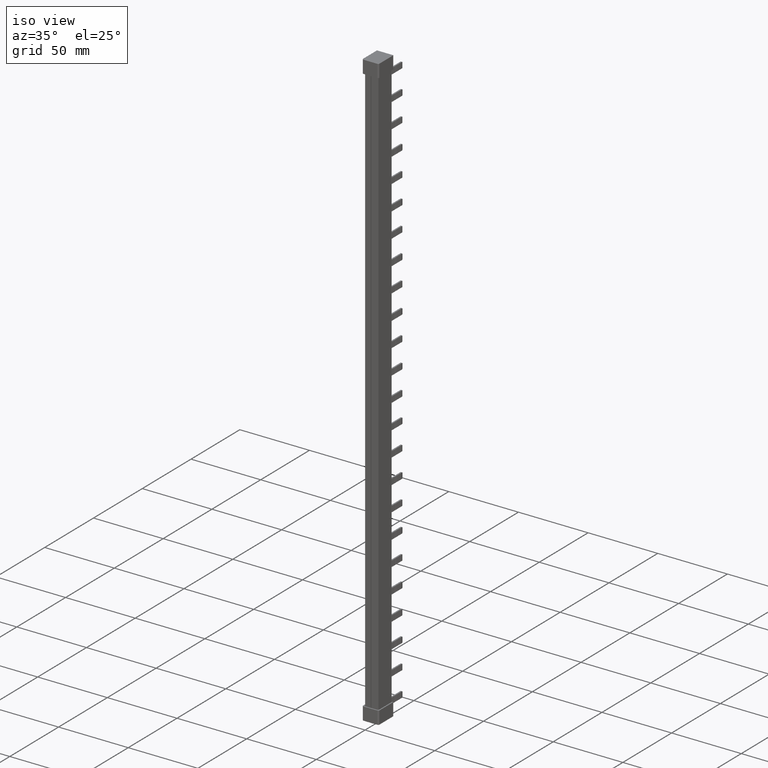
[diagram: clean part render]
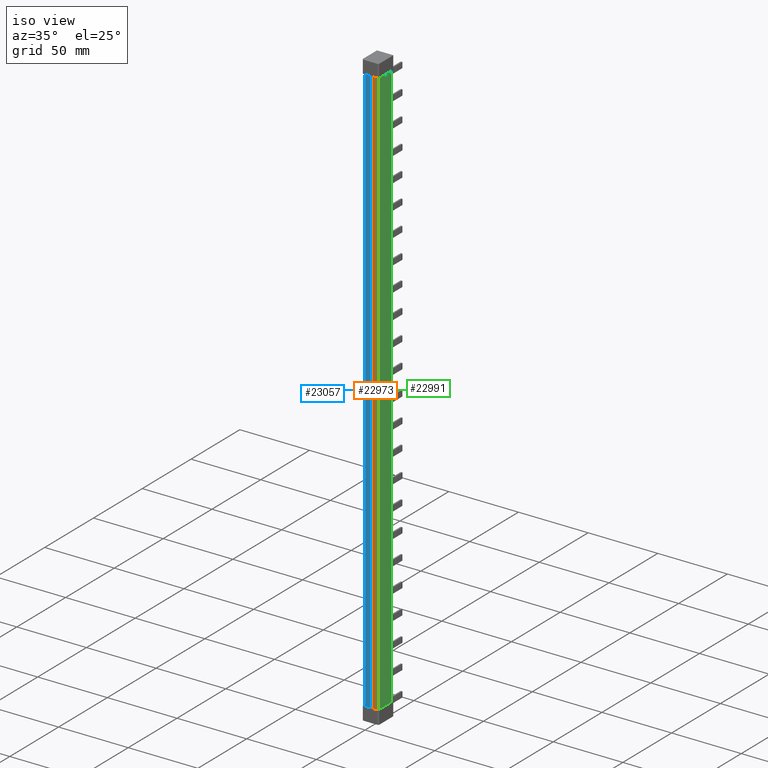
[diagram: same view with three faces highlighted in distinct colors, each labeled with its STEP entity id]
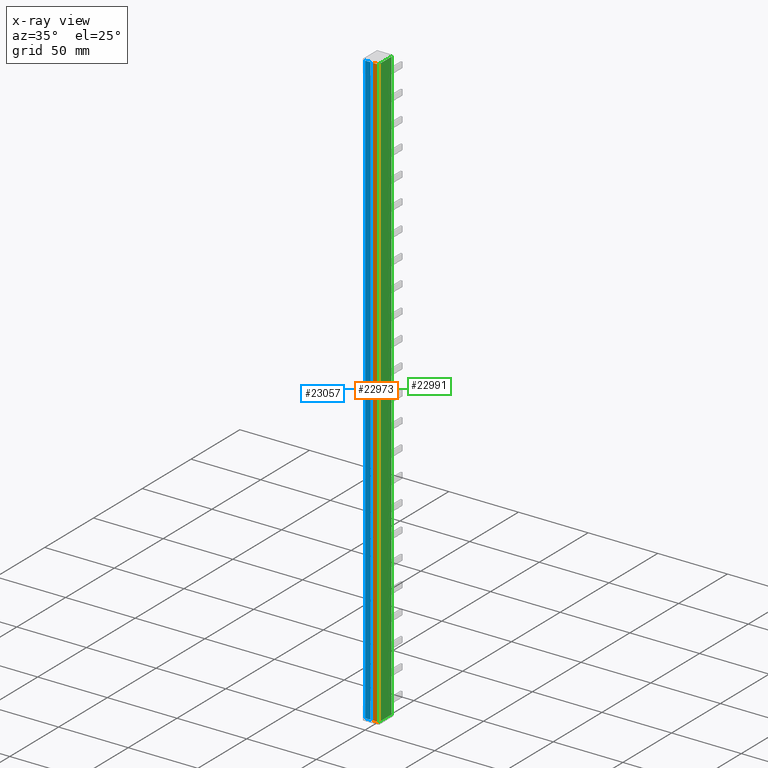
[diagram: x-ray of the same camera — body ghosted, the three highlighted faces saturated]
A machine part, iso view with three faces highlighted in distinct colors.
The next image is the same camera in x-ray (body ghosted, the three faces saturated) — at least one of them is partly hidden behind the body in this view.
Their STEP definitions:

[orange] entity #22973 — the highlighted planar face has unit normal (0, -1, 0).
#438 = AXIS2_PLACEMENT_3D ( 'NONE', #21634, #21608, #21605 ) ;
#9312 = B_SPLINE_CURVE_WITH_KNOTS ( 'NONE', 3,
 ( #30839, #30823, #30815, #30836 ),
 .UNSPECIFIED., .F., .F.,
 ( 4, 4 ),
 ( 0.0000000000000000000, 7.086635673192470600E-006 ),
 .UNSPECIFIED. ) ;
#9333 = B_SPLINE_CURVE_WITH_KNOTS ( 'NONE', 3,
 ( #30758, #30759, #30764, #30765 ),
 .UNSPECIFIED., .F., .F.,
 ( 4, 4 ),
 ( 3.469446951953613800E-018, 7.180330899525491700E-006 ),
 .UNSPECIFIED. ) ;
#9967 = VERTEX_POINT ( 'NONE', #18266 ) ;
#9986 = VERTEX_POINT ( 'NONE', #18237 ) ;
#9999 = VERTEX_POINT ( 'NONE', #18290 ) ;
#13827 = ORIENTED_EDGE ( 'NONE', *, *, #37877, .T. ) ;
#13831 = ORIENTED_EDGE ( 'NONE', *, *, #37899, .T. ) ;
#13855 = ORIENTED_EDGE ( 'NONE', *, *, #37754, .T. ) ;
#13913 = ORIENTED_EDGE ( 'NONE', *, *, #37886, .T. ) ;
#13927 = ORIENTED_EDGE ( 'NONE', *, *, #37911, .T. ) ;
#13955 = ORIENTED_EDGE ( 'NONE', *, *, #37828, .T. ) ;
#14345 = VECTOR ( 'NONE', #30755, 1000.000000000000000 ) ;
#14377 = VECTOR ( 'NONE', #30789, 1000.000000000000000 ) ;
#14390 = VECTOR ( 'NONE', #30668, 1000.000000000000000 ) ;
#14914 = VECTOR ( 'NONE', #30584, 1000.000000000000000 ) ;
#18237 = CARTESIAN_POINT ( 'NONE',  ( 9.592820323298621300, 8.673617379884035500E-017, 217.7999999999934200 ) ) ;
#18266 = CARTESIAN_POINT ( 'NONE',  ( 5.599999999999383200, -2.409338161078898500E-017, 217.7999999999956300 ) ) ;
#18290 = CARTESIAN_POINT ( 'NONE',  ( 5.599999999999383200, -6.023345402697246300E-018, -208.8000000000034800 ) ) ;
#21596 = PLANE ( 'NONE',  #438 ) ;
#21605 = DIRECTION ( 'NONE',  ( 0.0000000000000000000, -0.0000000000000000000, -1.000000000000000000 ) ) ;
#21608 = DIRECTION ( 'NONE',  ( 0.0000000000000000000, -1.000000000000000000, 0.0000000000000000000 ) ) ;
#21614 = FACE_OUTER_BOUND ( 'NONE', #33813, .T. ) ;
#21634 = CARTESIAN_POINT ( 'NONE',  ( 6.099999999999830900, 0.0000000000000000000, 219.0000000000000000 ) ) ;
#22973 = ADVANCED_FACE ( 'NONE', ( #21614 ), #21596, .T. ) ;
#23538 = VERTEX_POINT ( 'NONE', #23631 ) ;
#23580 = VERTEX_POINT ( 'NONE', #23814 ) ;
#23604 = VERTEX_POINT ( 'NONE', #23855 ) ;
#23631 = CARTESIAN_POINT ( 'NONE',  ( 9.592914026952424700, -6.865997570840165500E-011, -208.7999999901283000 ) ) ;
#23814 = CARTESIAN_POINT ( 'NONE',  ( 9.599999999999852200, -1.086912677916718200E-014, 217.7999030758346600 ) ) ;
#23855 = CARTESIAN_POINT ( 'NONE',  ( 9.599999999999852200, -1.029992063861229200E-014, -208.7999030758397500 ) ) ;
#30561 = CARTESIAN_POINT ( 'NONE',  ( 9.599999999999871700, 0.0000000000000000000, 219.0000000000000000 ) ) ;
#30583 = LINE ( 'NONE', #30561, #14914 ) ;
#30584 = DIRECTION ( 'NONE',  ( -0.0000000000000000000, 0.0000000000000000000, 1.000000000000000000 ) ) ;
#30664 = LINE ( 'NONE', #30686, #14390 ) ;
#30668 = DIRECTION ( 'NONE',  ( -1.000000000000000000, -0.0000000000000000000, 6.924738560343257600E-013 ) ) ;
#30686 = CARTESIAN_POINT ( 'NONE',  ( 8.900000000277932700, -5.421010862427522200E-017, 217.7999999999938400 ) ) ;
#30754 = CARTESIAN_POINT ( 'NONE',  ( 5.599999999999383200, 0.0000000000000000000, 219.0000000000000000 ) ) ;
#30755 = DIRECTION ( 'NONE',  ( 0.0000000000000000000, -0.0000000000000000000, -1.000000000000000000 ) ) ;
#30758 = CARTESIAN_POINT ( 'NONE',  ( 9.599999999999852200, -1.086912677916718200E-014, 217.7999030758346600 ) ) ;
#30759 = CARTESIAN_POINT ( 'NONE',  ( 9.597607430918758500, -1.626303258728256700E-016, 217.7999677721823000 ) ) ;
#30764 = CARTESIAN_POINT ( 'NONE',  ( 9.595213766931797400, 3.252606517456513300E-016, 217.7999999999935000 ) ) ;
#30765 = CARTESIAN_POINT ( 'NONE',  ( 9.592820323298621300, 8.673617379884035500E-017, 217.7999999999934200 ) ) ;
#30784 = LINE ( 'NONE', #30754, #14345 ) ;
#30786 = CARTESIAN_POINT ( 'NONE',  ( 8.899999999980860100, 0.0000000000000000000, -208.8000000000062100 ) ) ;
#30789 = DIRECTION ( 'NONE',  ( 1.000000000000000000, -0.0000000000000000000, -6.924738560343257600E-013 ) ) ;
#30796 = LINE ( 'NONE', #30786, #14377 ) ;
#30815 = CARTESIAN_POINT ( 'NONE',  ( 9.597638651249033300, 6.505213034913026600E-016, -208.7999669279756200 ) ) ;
#30823 = CARTESIAN_POINT ( 'NONE',  ( 9.595276238695325000, 3.252606517456513300E-016, -208.7999991534434800 ) ) ;
#30836 = CARTESIAN_POINT ( 'NONE',  ( 9.599999999999852200, -1.029992063861229200E-014, -208.7999030758397500 ) ) ;
#30839 = CARTESIAN_POINT ( 'NONE',  ( 9.592914026952424700, -6.865997570840165500E-011, -208.7999999901283000 ) ) ;
#33813 = EDGE_LOOP ( 'NONE', ( #13827, #13913, #13927, #13855, #13831, #13955 ) ) ;
#37754 = EDGE_CURVE ( 'NONE', #23604, #23580, #30583, .T. ) ;
#37828 = EDGE_CURVE ( 'NONE', #9986, #9967, #30664, .T. ) ;
#37877 = EDGE_CURVE ( 'NONE', #9967, #9999, #30784, .T. ) ;
#37886 = EDGE_CURVE ( 'NONE', #9999, #23538, #30796, .T. ) ;
#37899 = EDGE_CURVE ( 'NONE', #23580, #9986, #9333, .T. ) ;
#37911 = EDGE_CURVE ( 'NONE', #23538, #23604, #9312, .T. ) ;

[blue] entity #23057 — the highlighted planar face has unit normal (0, 1, 0).
#487 = AXIS2_PLACEMENT_3D ( 'NONE', #21872, #21841, #21833 ) ;
#9315 = B_SPLINE_CURVE_WITH_KNOTS ( 'NONE', 3,
 ( #30627, #30608, #30644, #30635 ),
 .UNSPECIFIED., .F., .F.,
 ( 4, 4 ),
 ( 1.807499908074109600E-017, 7.102352495239266600E-006 ),
 .UNSPECIFIED. ) ;
#9329 = B_SPLINE_CURVE_WITH_KNOTS ( 'NONE', 3,
 ( #30861, #30880, #30924, #30923 ),
 .UNSPECIFIED., .F., .F.,
 ( 4, 4 ),
 ( 2.168404344971008900E-019, 7.180331449033063700E-006 ),
 .UNSPECIFIED. ) ;
#9966 = VERTEX_POINT ( 'NONE', #18261 ) ;
#9972 = VERTEX_POINT ( 'NONE', #18219 ) ;
#9979 = VERTEX_POINT ( 'NONE', #18269 ) ;
#13892 = ORIENTED_EDGE ( 'NONE', *, *, #37917, .T. ) ;
#13900 = ORIENTED_EDGE ( 'NONE', *, *, #37864, .F. ) ;
#13933 = ORIENTED_EDGE ( 'NONE', *, *, #37903, .F. ) ;
#13941 = ORIENTED_EDGE ( 'NONE', *, *, #37794, .T. ) ;
#13945 = ORIENTED_EDGE ( 'NONE', *, *, #37970, .T. ) ;
#13957 = ORIENTED_EDGE ( 'NONE', *, *, #37872, .F. ) ;
#14347 = VECTOR ( 'NONE', #30837, 1000.000000000000000 ) ;
#14348 = VECTOR ( 'NONE', #30830, 1000.000000000000000 ) ;
#14372 = VECTOR ( 'NONE', #30790, 1000.000000000000000 ) ;
#14384 = VECTOR ( 'NONE', #30720, 1000.000000000000000 ) ;
#18219 = CARTESIAN_POINT ( 'NONE',  ( -1.755052266709506800E-014, -1.829591166069288700E-014, -208.7999030758342100 ) ) ;
#18261 = CARTESIAN_POINT ( 'NONE',  ( 3.021603118951639100E-027, -3.241764495731658300E-014, 217.7999030758261700 ) ) ;
#18269 = CARTESIAN_POINT ( 'NONE',  ( 4.000000000000447600, 0.0000000000000000000, -208.8000000000015500 ) ) ;
#21833 = DIRECTION ( 'NONE',  ( 0.0000000000000000000, -0.0000000000000000000, 1.000000000000000000 ) ) ;
#21841 = DIRECTION ( 'NONE',  ( 0.0000000000000000000, 1.000000000000000000, 0.0000000000000000000 ) ) ;
#21847 = PLANE ( 'NONE',  #487 ) ;
#21865 = FACE_OUTER_BOUND ( 'NONE', #33794, .T. ) ;
#21872 = CARTESIAN_POINT ( 'NONE',  ( 0.0000000000000000000, 0.0000000000000000000, 219.0000000000000000 ) ) ;
#23057 = ADVANCED_FACE ( 'NONE', ( #21865 ), #21847, .F. ) ;
#23490 = VERTEX_POINT ( 'NONE', #23547 ) ;
#23547 = CARTESIAN_POINT ( 'NONE',  ( 0.007101691267848297600, -6.941352874434425500E-011, -208.7999999931285200 ) ) ;
#23564 = VERTEX_POINT ( 'NONE', #23722 ) ;
#23612 = VERTEX_POINT ( 'NONE', #23864 ) ;
#23722 = CARTESIAN_POINT ( 'NONE',  ( 0.007179677250580122400, 7.752045533271356700E-015, 217.8000000000000100 ) ) ;
#23864 = CARTESIAN_POINT ( 'NONE',  ( 4.000000000000447600, 0.0000000000000000000, 217.7999999999999300 ) ) ;
#30608 = CARTESIAN_POINT ( 'NONE',  ( 0.002366585777200488500, -3.252606517456513300E-016, -208.7999670695817000 ) ) ;
#30627 = CARTESIAN_POINT ( 'NONE',  ( -1.755052266709506800E-014, -1.829591166069288700E-014, -208.7999030758342100 ) ) ;
#30635 = CARTESIAN_POINT ( 'NONE',  ( 0.007101691267848297600, -6.941352874434425500E-011, -208.7999999931285200 ) ) ;
#30644 = CARTESIAN_POINT ( 'NONE',  ( 0.004734240538673776400, 3.252606517456513300E-016, -208.7999992962148500 ) ) ;
#30717 = LINE ( 'NONE', #30718, #14384 ) ;
#30718 = CARTESIAN_POINT ( 'NONE',  ( 0.0000000000000000000, 0.0000000000000000000, 217.8000000000000100 ) ) ;
#30720 = DIRECTION ( 'NONE',  ( 1.000000000000000000, 0.0000000000000000000, -0.0000000000000000000 ) ) ;
#30766 = LINE ( 'NONE', #30788, #14372 ) ;
#30788 = CARTESIAN_POINT ( 'NONE',  ( 0.0000000000000000000, 0.0000000000000000000, -208.8000000000009200 ) ) ;
#30790 = DIRECTION ( 'NONE',  ( -1.000000000000000000, -0.0000000000000000000, 0.0000000000000000000 ) ) ;
#30800 = LINE ( 'NONE', #30825, #14348 ) ;
#30813 = LINE ( 'NONE', #30814, #14347 ) ;
#30814 = CARTESIAN_POINT ( 'NONE',  ( 4.000000000000447600, 0.0000000000000000000, 219.0000000000000000 ) ) ;
#30825 = CARTESIAN_POINT ( 'NONE',  ( 0.0000000000000000000, -3.642919299551294900E-014, 219.0000000000000000 ) ) ;
#30830 = DIRECTION ( 'NONE',  ( 0.0000000000000000000, 0.0000000000000000000, -1.000000000000000000 ) ) ;
#30837 = DIRECTION ( 'NONE',  ( -0.0000000000000000000, 0.0000000000000000000, -1.000000000000000000 ) ) ;
#30861 = CARTESIAN_POINT ( 'NONE',  ( 0.007179677250580122400, 7.752045533271356700E-015, 217.8000000000000100 ) ) ;
#30880 = CARTESIAN_POINT ( 'NONE',  ( 0.004786233434235866900, -8.131516293641283300E-017, 217.8000000000000100 ) ) ;
#30923 = CARTESIAN_POINT ( 'NONE',  ( 3.021603118951639100E-027, -3.241764495731658300E-014, 217.7999030758261700 ) ) ;
#30924 = CARTESIAN_POINT ( 'NONE',  ( 0.002392569264056993100, 0.0000000000000000000, 217.7999677721837800 ) ) ;
#33794 = EDGE_LOOP ( 'NONE', ( #13892, #13941, #13957, #13933, #13900, #13945 ) ) ;
#37794 = EDGE_CURVE ( 'NONE', #9972, #23490, #9315, .T. ) ;
#37864 = EDGE_CURVE ( 'NONE', #23564, #23612, #30717, .T. ) ;
#37872 = EDGE_CURVE ( 'NONE', #9979, #23490, #30766, .T. ) ;
#37903 = EDGE_CURVE ( 'NONE', #23612, #9979, #30813, .T. ) ;
#37917 = EDGE_CURVE ( 'NONE', #9966, #9972, #30800, .T. ) ;
#37970 = EDGE_CURVE ( 'NONE', #23564, #9966, #9329, .T. ) ;

[green] entity #22991 — the highlighted planar face has unit normal (1, -0, 0).
#436 = AXIS2_PLACEMENT_3D ( 'NONE', #21683, #21690, #21672 ) ;
#9327 = B_SPLINE_CURVE_WITH_KNOTS ( 'NONE', 3,
 ( #30957, #30940, #30941, #30956 ),
 .UNSPECIFIED., .F., .F.,
 ( 4, 4 ),
 ( 1.029930643167077400E-017, 1.254962193624357700E-005 ),
 .UNSPECIFIED. ) ;
#9332 = B_SPLINE_CURVE_WITH_KNOTS ( 'NONE', 3,
 ( #30908, #30950, #30966, #30942 ),
 .UNSPECIFIED., .F., .F.,
 ( 4, 4 ),
 ( 0.0000000000000000000, 1.270203513945254400E-005 ),
 .UNSPECIFIED. ) ;
#9969 = VERTEX_POINT ( 'NONE', #18244 ) ;
#9997 = VERTEX_POINT ( 'NONE', #18326 ) ;
#13653 = ORIENTED_EDGE ( 'NONE', *, *, #38003, .T. ) ;
#13770 = ORIENTED_EDGE ( 'NONE', *, *, #38005, .T. ) ;
#13794 = ORIENTED_EDGE ( 'NONE', *, *, #37769, .T. ) ;
#13797 = ORIENTED_EDGE ( 'NONE', *, *, #37884, .T. ) ;
#13801 = ORIENTED_EDGE ( 'NONE', *, *, #37812, .T. ) ;
#13887 = ORIENTED_EDGE ( 'NONE', *, *, #37754, .F. ) ;
#14356 = VECTOR ( 'NONE', #30776, 1000.000000000000000 ) ;
#14914 = VECTOR ( 'NONE', #30584, 1000.000000000000000 ) ;
#14931 = VECTOR ( 'NONE', #30694, 1000.000000000000000 ) ;
#14946 = VECTOR ( 'NONE', #30578, 1000.000000000000000 ) ;
#18244 = CARTESIAN_POINT ( 'NONE',  ( 9.599999999997635300, 0.01254924774888371500, -208.7999999918356500 ) ) ;
#18326 = CARTESIAN_POINT ( 'NONE',  ( 9.600000000031695200, 0.01270166533927966100, 217.7999999999939900 ) ) ;
#21652 = FACE_OUTER_BOUND ( 'NONE', #33774, .T. ) ;
#21672 = DIRECTION ( 'NONE',  ( 0.0000000000000000000, 0.0000000000000000000, -1.000000000000000000 ) ) ;
#21683 = CARTESIAN_POINT ( 'NONE',  ( 9.599999999999830900, 0.0000000000000000000, -105.0000000000000100 ) ) ;
#21690 = DIRECTION ( 'NONE',  ( 1.000000000000000000, -0.0000000000000000000, 0.0000000000000000000 ) ) ;
#21692 = PLANE ( 'NONE',  #436 ) ;
#22991 = ADVANCED_FACE ( 'NONE', ( #21652 ), #21692, .T. ) ;
#23552 = VERTEX_POINT ( 'NONE', #23775 ) ;
#23577 = VERTEX_POINT ( 'NONE', #23769 ) ;
#23580 = VERTEX_POINT ( 'NONE', #23814 ) ;
#23604 = VERTEX_POINT ( 'NONE', #23855 ) ;
#23769 = CARTESIAN_POINT ( 'NONE',  ( 9.599999999999830900, 13.49999999999998400, 217.7999999999962900 ) ) ;
#23775 = CARTESIAN_POINT ( 'NONE',  ( 9.599999999999830900, 13.49999999999998400, -208.7999999954641600 ) ) ;
#23814 = CARTESIAN_POINT ( 'NONE',  ( 9.599999999999852200, -1.086912677916718200E-014, 217.7999030758346600 ) ) ;
#23855 = CARTESIAN_POINT ( 'NONE',  ( 9.599999999999852200, -1.029992063861229200E-014, -208.7999030758397500 ) ) ;
#30561 = CARTESIAN_POINT ( 'NONE',  ( 9.599999999999871700, 0.0000000000000000000, 219.0000000000000000 ) ) ;
#30574 = LINE ( 'NONE', #30577, #14946 ) ;
#30577 = CARTESIAN_POINT ( 'NONE',  ( 9.599999999999830900, 0.0000000000000000000, 217.7999999999962900 ) ) ;
#30578 = DIRECTION ( 'NONE',  ( -0.0000000000000000000, -1.000000000000000000, -0.0000000000000000000 ) ) ;
#30583 = LINE ( 'NONE', #30561, #14914 ) ;
#30584 = DIRECTION ( 'NONE',  ( -0.0000000000000000000, 0.0000000000000000000, 1.000000000000000000 ) ) ;
#30654 = LINE ( 'NONE', #30660, #14931 ) ;
#30660 = CARTESIAN_POINT ( 'NONE',  ( 9.599999999999830900, 13.49999999999998400, -105.0000000000000100 ) ) ;
#30694 = DIRECTION ( 'NONE',  ( -0.0000000000000000000, -0.0000000000000000000, 1.000000000000000000 ) ) ;
#30763 = CARTESIAN_POINT ( 'NONE',  ( 9.599999999999830900, 0.0000000000000000000, -208.7999999931952600 ) ) ;
#30769 = LINE ( 'NONE', #30763, #14356 ) ;
#30776 = DIRECTION ( 'NONE',  ( 0.0000000000000000000, 1.000000000000000000, 0.0000000000000000000 ) ) ;
#30908 = CARTESIAN_POINT ( 'NONE',  ( 9.600000000031695200, 0.01270166533927966100, 217.7999999999939900 ) ) ;
#30940 = CARTESIAN_POINT ( 'NONE',  ( 9.599999999999830900, 0.004182708018314006000, -208.7999677059350200 ) ) ;
#30941 = CARTESIAN_POINT ( 'NONE',  ( 9.599999999999827300, 0.008366040504565052900, -208.7999992388714900 ) ) ;
#30942 = CARTESIAN_POINT ( 'NONE',  ( 9.599999999999852200, -1.086912677916718200E-014, 217.7999030758346600 ) ) ;
#30950 = CARTESIAN_POINT ( 'NONE',  ( 9.599999999999830900, 0.008467653626125075700, 217.7999999999957500 ) ) ;
#30956 = CARTESIAN_POINT ( 'NONE',  ( 9.599999999997635300, 0.01254924774888371500, -208.7999999918356500 ) ) ;
#30957 = CARTESIAN_POINT ( 'NONE',  ( 9.599999999999852200, -1.029992063861229200E-014, -208.7999030758397500 ) ) ;
#30966 = CARTESIAN_POINT ( 'NONE',  ( 9.599999999999830900, 0.004233506355582776500, 217.7999684908496400 ) ) ;
#33774 = EDGE_LOOP ( 'NONE', ( #13770, #13887, #13653, #13797, #13801, #13794 ) ) ;
#37754 = EDGE_CURVE ( 'NONE', #23604, #23580, #30583, .T. ) ;
#37769 = EDGE_CURVE ( 'NONE', #23577, #9997, #30574, .T. ) ;
#37812 = EDGE_CURVE ( 'NONE', #23552, #23577, #30654, .T. ) ;
#37884 = EDGE_CURVE ( 'NONE', #9969, #23552, #30769, .T. ) ;
#38003 = EDGE_CURVE ( 'NONE', #23604, #9969, #9327, .T. ) ;
#38005 = EDGE_CURVE ( 'NONE', #9997, #23580, #9332, .T. ) ;